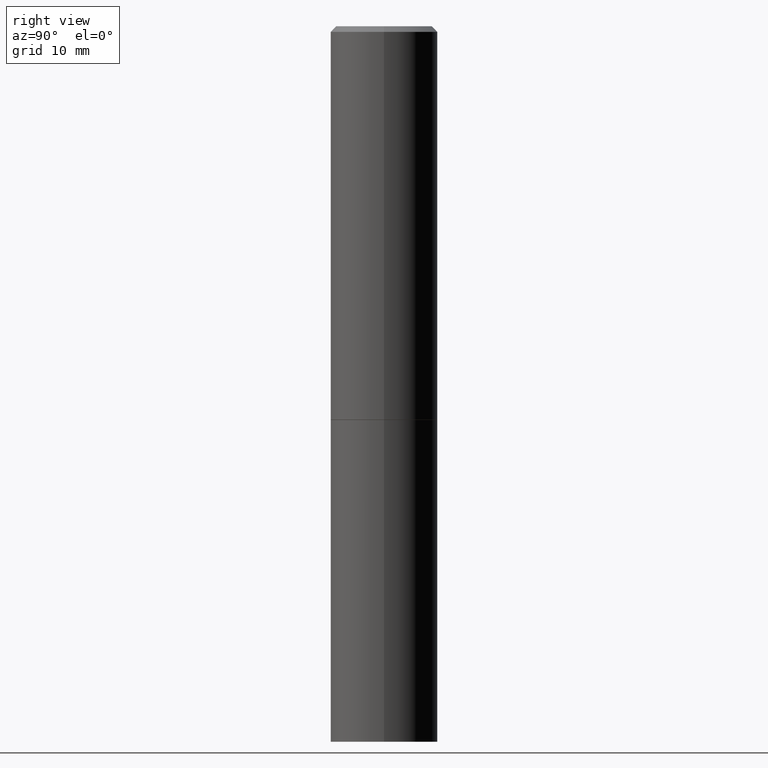
[diagram: clean part render]
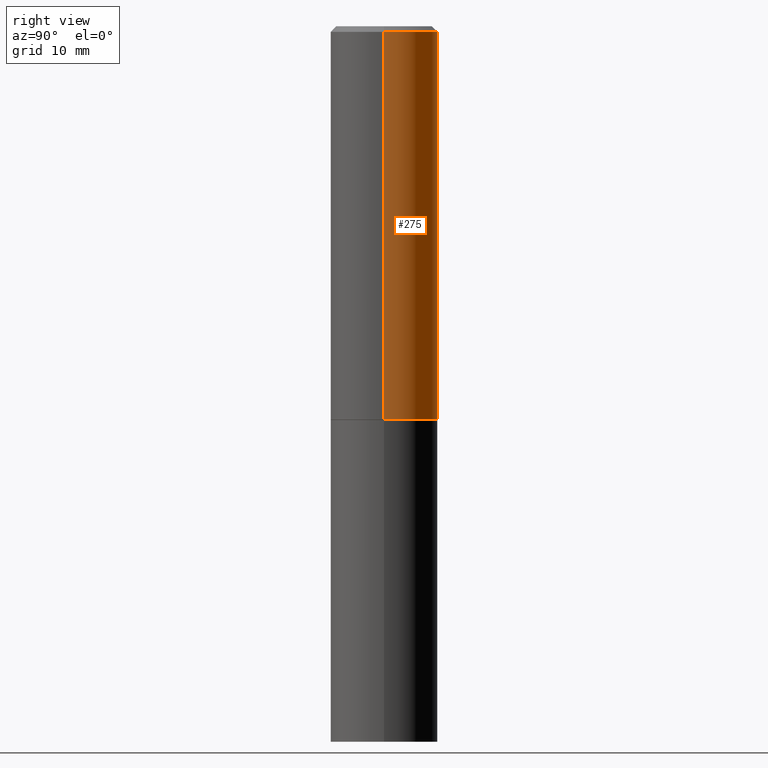
[diagram: same view with one face highlighted and labeled with its STEP entity id]
A machine part, right view. The second image highlights one B-rep face of the part: STEP entity #275.
In plain terms, the highlighted cylindrical surface (partial cylindrical patch) has radius 4.7625 mm, axis along (-0, 0, 1).
Its self-contained STEP definition (entity closure, byte-faithful):
#1 = EDGE_CURVE ( 'NONE', #183, #12, #231, .T. ) ;
#5 = AXIS2_PLACEMENT_3D ( 'NONE', #241, #40, #153 ) ;
#12 = VERTEX_POINT ( 'NONE', #250 ) ;
#20 = CIRCLE ( 'NONE', #303, 0.1874999999999998335 ) ;
#25 = LINE ( 'NONE', #142, #299 ) ;
#39 = AXIS2_PLACEMENT_3D ( 'NONE', #338, #196, #312 ) ;
#40 = DIRECTION ( 'NONE',  ( -2.445468806185136597E-29, 3.491481338843145583E-15, 1.000000000000000000 ) ) ;
#41 = VERTEX_POINT ( 'NONE', #238 ) ;
#48 = DIRECTION ( 'NONE',  ( -2.445468806185136597E-29, 3.491481338843145583E-15, 1.000000000000000000 ) ) ;
#53 = ORIENTED_EDGE ( 'NONE', *, *, #293, .T. ) ;
#78 = ORIENTED_EDGE ( 'NONE', *, *, #147, .F. ) ;
#95 = EDGE_CURVE ( 'NONE', #183, #353, #146, .T. ) ;
#96 = ORIENTED_EDGE ( 'NONE', *, *, #95, .T. ) ;
#110 = EDGE_LOOP ( 'NONE', ( #96, #53, #78, #363 ) ) ;
#113 = DIRECTION ( 'NONE',  ( -2.445468806185136877E-29, 3.491481338843145188E-15, 1.000000000000000000 ) ) ;
#114 = CARTESIAN_POINT ( 'NONE',  ( 0.1874999999999999167, -1.309305502066174219E-15, 9.142831454617375408E-30 ) ) ;
#142 = CARTESIAN_POINT ( 'NONE',  ( -0.1874999999999999167, 1.332267629550187257E-15, -9.223003294227943787E-30 ) ) ;
#146 = CIRCLE ( 'NONE', #5, 0.1875000000000000278 ) ;
#147 = EDGE_CURVE ( 'NONE', #12, #41, #20, .T. ) ;
#153 = DIRECTION ( 'NONE',  ( 1.000000000000000000, -6.982962677686266711E-15, 0.000000000000000000 ) ) ;
#155 = CARTESIAN_POINT ( 'NONE',  ( 4.890937612370283668E-31, -6.982962677686305168E-17, -0.02000000000000004205 ) ) ;
#169 = CYLINDRICAL_SURFACE ( 'NONE', #39, 0.1874999999999999167 ) ;
#183 = VERTEX_POINT ( 'NONE', #331 ) ;
#196 = DIRECTION ( 'NONE',  ( -2.445468806185136597E-29, 3.491481338843145583E-15, 1.000000000000000000 ) ) ;
#229 = FACE_OUTER_BOUND ( 'NONE', #110, .T. ) ;
#231 = LINE ( 'NONE', #114, #290 ) ;
#238 = CARTESIAN_POINT ( 'NONE',  ( -0.1874999999999998335, 1.239475875289310724E-15, -0.02000000000000004205 ) ) ;
#241 = CARTESIAN_POINT ( 'NONE',  ( 3.360074139698377778E-29, -4.797295359570481134E-15, -1.373999999999999888 ) ) ;
#250 = CARTESIAN_POINT ( 'NONE',  ( 0.1874999999999998335, -1.356173001359024283E-15, -0.02000000000000004205 ) ) ;
#254 = DIRECTION ( 'NONE',  ( -2.445468806185136877E-29, 3.491481338843145188E-15, 1.000000000000000000 ) ) ;
#275 = ADVANCED_FACE ( 'NONE', ( #229 ), #169, .T. ) ;
#279 = DIRECTION ( 'NONE',  ( 1.000000000000000000, -6.982962677686266711E-15, 0.000000000000000000 ) ) ;
#290 = VECTOR ( 'NONE', #254, 39.37007874015748143 ) ;
#293 = EDGE_CURVE ( 'NONE', #353, #41, #25, .T. ) ;
#299 = VECTOR ( 'NONE', #113, 39.37007874015748143 ) ;
#303 = AXIS2_PLACEMENT_3D ( 'NONE', #155, #48, #279 ) ;
#312 = DIRECTION ( 'NONE',  ( 1.000000000000000000, -6.982962677686265922E-15, 4.876176775795935793E-29 ) ) ;
#322 = CARTESIAN_POINT ( 'NONE',  ( -0.1874999999999999722, -1.101294863623483776E-15, -1.373999999999999888 ) ) ;
#331 = CARTESIAN_POINT ( 'NONE',  ( 0.1875000000000000278, -6.106600861636656931E-15, -1.373999999999999888 ) ) ;
#338 = CARTESIAN_POINT ( 'NONE',  ( 0.000000000000000000, 0.000000000000000000, 0.000000000000000000 ) ) ;
#353 = VERTEX_POINT ( 'NONE', #322 ) ;
#363 = ORIENTED_EDGE ( 'NONE', *, *, #1, .F. ) ;